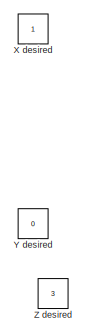
[diagram: root canvas - part 1/2, top left region]
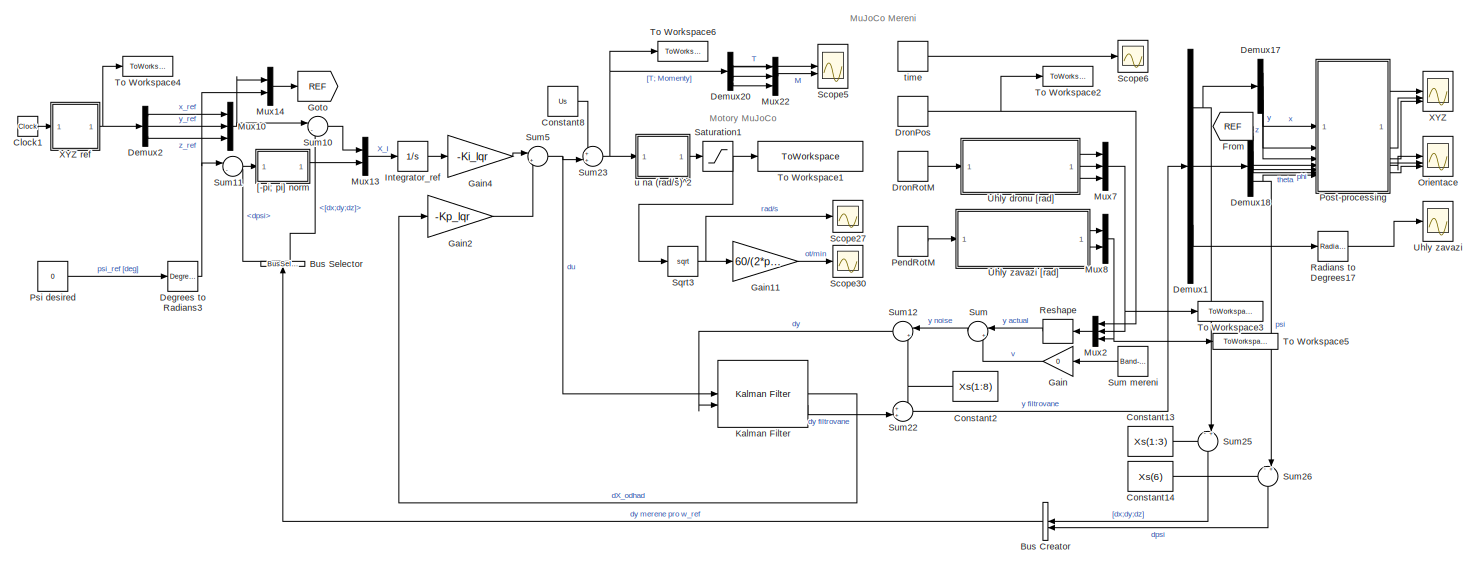
[diagram: root canvas - part 2/2, most of the canvas]
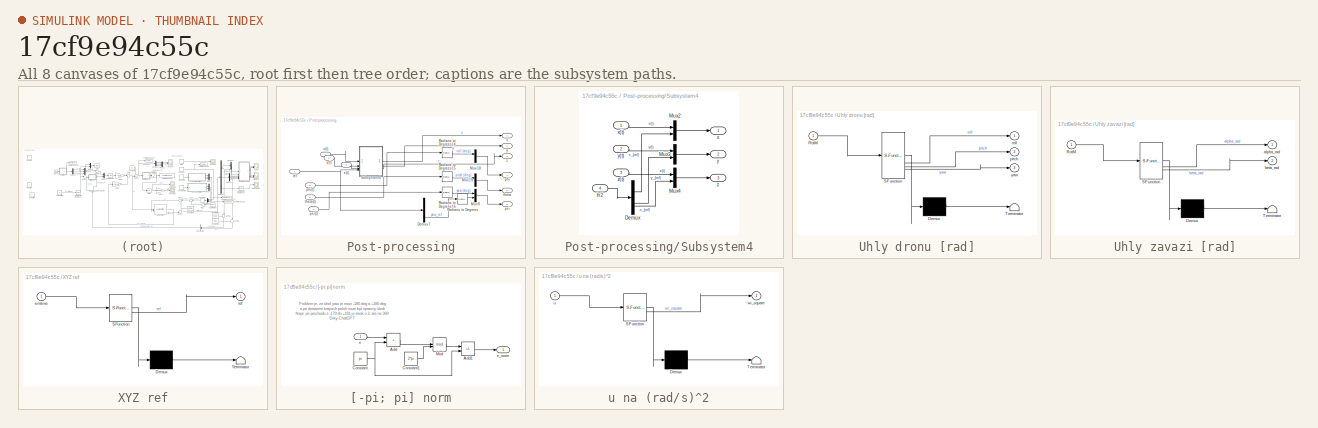
[diagram: thumbnail index - all 8 canvases of the model, root first then tree order]
MODEL slx_17cf9e94c55c
KIND model
CONFIG AbsTol = auto
CONFIG EnableMultiTasking = off
CONFIG FixedStep = 0.005
CONFIG MaxStep = auto
CONFIG MinStep = auto
CONFIG RelTol = 1e-3
CONFIG SampleTimeConstraint = Unconstrained
CONFIG SolverName = ode4
CONFIG StartTime = 0.0
CONFIG StopTime = 1
BLOCK [BusCreator] Bus Creator
  DisplayOption = bar
  InheritFromInputs = on
  Inputs = 2
BLOCK [BusSelector] Bus Selector
  NameLocation = right
  OutputSignals = dpsi,[dx;dy;dz]
BLOCK [Clock] Clock1
BLOCK [Constant] Constant13
  Value = Xs(1:3)
BLOCK [Constant] Constant14
  Value = Xs(6)
BLOCK [Constant] Constant2
  Value = Xs(1:8)
BLOCK [Constant] Constant8
  Value = Us
BLOCK [Reference] Degrees to Radians3  REF=simulink_extras/Transformations/Degrees to
Radians
  SourceBlock = simulink_extras/Transformations/Degrees to\nRadians
  SourceType = DegreesToRadians
BLOCK [Demux] Demux1
  Outputs = 3
BLOCK [Demux] Demux17
  Outputs = 3
BLOCK [Demux] Demux18
  Outputs = 3
BLOCK [Demux] Demux2
  Outputs = 3
BLOCK [Demux] Demux20
BLOCK [MATLABFcn] DronPos
  MATLABFcn = evalin('base', 'DronPos');
  Output1D = off
  OutputDimensions = [3,1]
BLOCK [MATLABFcn] DronRotM
  MATLABFcn = evalin('base', 'DronRotM');
  Output1D = off
  OutputDimensions = [3,3]
BLOCK [From] From
  GotoTag = REF
BLOCK [Gain] Gain
  Gain = 0
BLOCK [Gain] Gain11
  Gain = 60/(2*pi)
BLOCK [Gain] Gain2
  Gain = -Kp_lqr
  Multiplication = Matrix(K*u)
BLOCK [Gain] Gain4
  Gain = -Ki_lqr
  Multiplication = Matrix(K*u)
BLOCK [Goto] Goto
  GotoTag = REF
BLOCK [Integrator] Integrator_ref
  InitialCondition = init_int_dref
BLOCK [Reference] Kalman Filter   REF=ctrlSharedLib/Kalman Filter
  LibrarySourceBlock = cstblocks/State Estimation/Kalman Filter
  SourceBlock = ctrlSharedLib/Kalman Filter
  SourceType = ctrlKalmanFilter
BLOCK [Mux] Mux10
  DisplayOption = bar
  Inputs = 3
BLOCK [Mux] Mux13
  DisplayOption = bar
  Inputs = 2
BLOCK [Mux] Mux14
  DisplayOption = bar
  Inputs = 2
BLOCK [Mux] Mux2
  DisplayOption = bar
  Inputs = 3
BLOCK [Mux] Mux22
  DisplayOption = bar
  Inputs = 3
BLOCK [Mux] Mux7
  DisplayOption = bar
  Inputs = 3
BLOCK [Mux] Mux8
  DisplayOption = bar
  Inputs = 2
BLOCK [Scope] Orientace
  Floating = off
  NumInputPorts = 3
  ScopeSpecificationString = Simulink.scopes.TimeScopeBlockCfg('CurrentConfiguration', extmgr.ConfigurationSet(extmgr.Configuration('Core','General UI',true),extmgr.Configuration('Core','Source UI',true),extmgr.Configuration('Sources','WiredSimulink',true,'DataLoggingVariableName','ScopeData1'),extmgr.Configuration('Visuals','Time Domain',true,'PlotType','Stairs','SerializedDisplays',{struct('MinYLimReal','-9.90988','MaxYLimR...<+3443ch>
BLOCK [MATLABFcn] PendRotM
  MATLABFcn = evalin('base', 'PendRotM');
  Output1D = off
  OutputDimensions = [3,3]
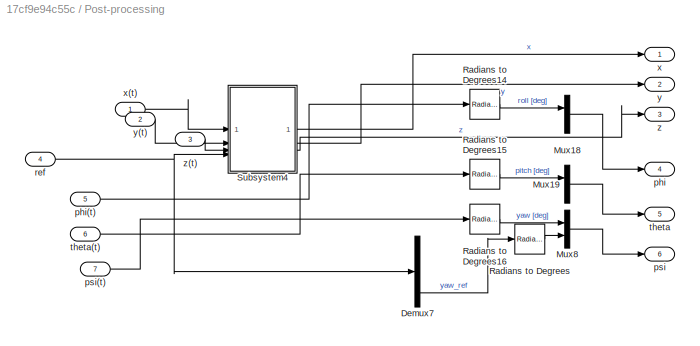
BLOCK [SubSystem] Post-processing
BLOCK [Demux] Post-processing/Demux7
BLOCK [Mux] Post-processing/Mux18
  DisplayOption = bar
  Inputs = 2
BLOCK [Mux] Post-processing/Mux19
  DisplayOption = bar
  Inputs = 2
BLOCK [Mux] Post-processing/Mux8
  DisplayOption = bar
  Inputs = 2
BLOCK [Reference] Post-processing/Radians to Degrees  REF=simulink_extras/Transformations/Radians
to Degrees
  SourceBlock = simulink_extras/Transformations/Radians\nto Degrees
  SourceType = RadiansToDegrees
BLOCK [Reference] Post-processing/Radians to Degrees14  REF=simulink_extras/Transformations/Radians
to Degrees
  SourceBlock = simulink_extras/Transformations/Radians\nto Degrees
  SourceType = RadiansToDegrees
BLOCK [Reference] Post-processing/Radians to Degrees15  REF=simulink_extras/Transformations/Radians
to Degrees
  SourceBlock = simulink_extras/Transformations/Radians\nto Degrees
  SourceType = RadiansToDegrees
BLOCK [Reference] Post-processing/Radians to Degrees16  REF=simulink_extras/Transformations/Radians
to Degrees
  SourceBlock = simulink_extras/Transformations/Radians\nto Degrees
  SourceType = RadiansToDegrees
BLOCK [SubSystem] Post-processing/Subsystem4
BLOCK [Demux] Post-processing/Subsystem4/Demux
BLOCK [Inport] Post-processing/Subsystem4/In2
  Port = 4
BLOCK [Mux] Post-processing/Subsystem4/Mux2
  DisplayOption = bar
  Inputs = 2
BLOCK [Mux] Post-processing/Subsystem4/Mux3
  DisplayOption = bar
  Inputs = 2
BLOCK [Mux] Post-processing/Subsystem4/Mux4
  DisplayOption = bar
  Inputs = 2
BLOCK [Outport] Post-processing/Subsystem4/x
BLOCK [Inport] Post-processing/Subsystem4/x(t)
BLOCK [Outport] Post-processing/Subsystem4/y
  Port = 2
BLOCK [Inport] Post-processing/Subsystem4/y(t)
  Port = 2
BLOCK [Outport] Post-processing/Subsystem4/z
  Port = 3
BLOCK [Inport] Post-processing/Subsystem4/z(t)
  Port = 3
BLOCK [Outport] Post-processing/phi
  Port = 4
BLOCK [Inport] Post-processing/phi(t)
  Port = 5
BLOCK [Outport] Post-processing/psi
  Port = 6
BLOCK [Inport] Post-processing/psi(t)
  Port = 7
BLOCK [Inport] Post-processing/ref
  Port = 4
BLOCK [Outport] Post-processing/theta
  Port = 5
BLOCK [Inport] Post-processing/theta(t)
  Port = 6
BLOCK [Outport] Post-processing/x
BLOCK [Inport] Post-processing/x(t)
BLOCK [Outport] Post-processing/y
  Port = 2
BLOCK [Inport] Post-processing/y(t)
  Port = 2
BLOCK [Outport] Post-processing/z
  Port = 3
BLOCK [Inport] Post-processing/z(t)
  Port = 3
BLOCK [Constant] Psi desired
  Value = 0
BLOCK [Reference] Radians to Degrees17  REF=simulink_extras/Transformations/Radians
to Degrees
  SourceBlock = simulink_extras/Transformations/Radians\nto Degrees
  SourceType = RadiansToDegrees
BLOCK [Reshape] Reshape
  OutputDimensionality = Customize
  OutputDimensions = [8,1]
BLOCK [Saturate] Saturation1
  LowerLimit = 0
  UpperLimit = 1976^2
BLOCK [Scope] Scope27
  Floating = off
  NumInputPorts = 1
  ScopeSpecificationString = Simulink.scopes.TimeScopeBlockCfg('CurrentConfiguration', extmgr.ConfigurationSet(extmgr.Configuration('Core','General UI',true),extmgr.Configuration('Core','Source UI',true),extmgr.Configuration('Sources','WiredSimulink',true,'DataLoggingVariableName','ScopeData3'),extmgr.Configuration('Visuals','Time Domain',true,'SerializedDisplays',{struct('MinYLimReal','598.75272','MaxYLimReal','1185.0066','Y...<+1572ch>
BLOCK [Scope] Scope30
  Commented = on
  Floating = off
  NumInputPorts = 1
  ScopeSpecificationString = Simulink.scopes.TimeScopeBlockCfg('CurrentConfiguration', extmgr.ConfigurationSet(extmgr.Configuration('Core','General UI',true),extmgr.Configuration('Core','Source UI',true),extmgr.Configuration('Sources','WiredSimulink',true,'DataLoggingVariableName','ScopeData4'),extmgr.Configuration('Visuals','Time Domain',true,'SerializedDisplays',{struct('MinYLimReal','7939.33189','MaxYLimReal','9984.01729',...<+1584ch>
BLOCK [Scope] Scope5
  Floating = off
  NumInputPorts = 2
  ScopeSpecificationString = Simulink.scopes.TimeScopeBlockCfg('CurrentConfiguration', extmgr.ConfigurationSet(extmgr.Configuration('Core','General UI',true),extmgr.Configuration('Core','Source UI',true),extmgr.Configuration('Sources','WiredSimulink',true,'DataLoggingVariableName','ScopeData5'),extmgr.Configuration('Visuals','Time Domain',true,'SerializedDisplays',{struct('MinYLimReal','12.1908','MaxYLimReal','51.07923','YLab...<+2265ch>
BLOCK [Scope] Scope6
  Floating = off
  NumInputPorts = 1
  ScopeSpecificationString = Simulink.scopes.TimeScopeBlockCfg('CurrentConfiguration', extmgr.ConfigurationSet(extmgr.Configuration('Core','General UI',true),extmgr.Configuration('Core','Source UI',true),extmgr.Configuration('Sources','WiredSimulink',true,'DataLoggingVariableName','ScopeData6'),extmgr.Configuration('Visuals','Time Domain',true,'SerializedDisplays',{struct('MinYLimReal','-0.8','MaxYLimReal','7.2','YLabelReal',...<+1501ch>
BLOCK [Sqrt] Sqrt3
BLOCK [Sum] Sum
  Inputs = |++
BLOCK [Reference] Sum mereni  REF=simulink/Sources/Band-Limited
White Noise
  SourceBlock = simulink/Sources/Band-Limited\nWhite Noise
  SourceType = Band-Limited White Noise.
BLOCK [Sum] Sum10
  Inputs = |-+
BLOCK [Sum] Sum11
  Inputs = |-+
BLOCK [Sum] Sum12
  Inputs = |+-
BLOCK [Sum] Sum22
  Inputs = ++|
BLOCK [Sum] Sum23
  Inputs = ++|
BLOCK [Sum] Sum25
  Inputs = -+|
  NameLocation = left
BLOCK [Sum] Sum26
  Inputs = -+|
  NameLocation = left
BLOCK [Sum] Sum5
  Inputs = |++
BLOCK [ToWorkspace] To Workspace1
  FixptAsFi = on
  MaxDataPoints = inf
  SampleTime = -1
  VariableName = Rotor_AngVel_square
BLOCK [ToWorkspace] To Workspace2
  FixptAsFi = on
  MaxDataPoints = inf
  SampleTime = -1
  SaveFormat = Timeseries
  VariableName = dron_pos
BLOCK [ToWorkspace] To Workspace3
  FixptAsFi = on
  MaxDataPoints = inf
  SampleTime = -1
  SaveFormat = Timeseries
  VariableName = dron_angles
BLOCK [ToWorkspace] To Workspace4
  FixptAsFi = on
  MaxDataPoints = inf
  SampleTime = -1
  SaveFormat = Timeseries
  VariableName = ref
BLOCK [ToWorkspace] To Workspace5
  FixptAsFi = on
  MaxDataPoints = inf
  SampleTime = -1
  SaveFormat = Timeseries
  VariableName = pend_angles
BLOCK [ToWorkspace] To Workspace6
  FixptAsFi = on
  MaxDataPoints = inf
  SampleTime = -1
  SaveFormat = Timeseries
  VariableName = sily
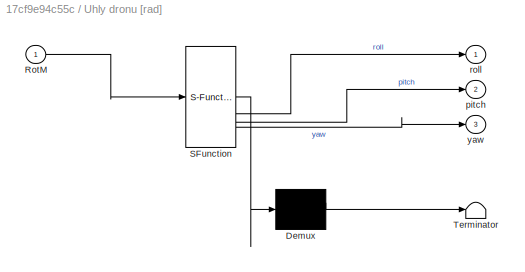
BLOCK [SubSystem] Uhly dronu [rad]
  ErrorFcn = Stateflow.Translate.translate
  PermitHierarchicalResolution = ExplicitOnly
  SFBlockType = MATLAB Function
  TreatAsAtomicUnit = on
BLOCK [Demux] Uhly dronu [rad]/ Demux 
  Outputs = 1
BLOCK [S-Function] Uhly dronu [rad]/ SFunction 
  EnableBusSupport = on
  FunctionName = sf_sfun
  PortCounts = [1 4]
  SFcnIsStateOwnerBlock = off
  SFunctionDeploymentMode = off
  Tag = Stateflow S-Function 7
BLOCK [Terminator] Uhly dronu [rad]/ Terminator 
BLOCK [Inport] Uhly dronu [rad]/RotM
BLOCK [Outport] Uhly dronu [rad]/pitch
  Port = 2
BLOCK [Outport] Uhly dronu [rad]/roll
BLOCK [Outport] Uhly dronu [rad]/yaw
  Port = 3
BLOCK [Scope] Uhly zavazi
  Floating = off
  NumInputPorts = 1
  ScopeSpecificationString = Simulink.scopes.TimeScopeBlockCfg('CurrentConfiguration', extmgr.ConfigurationSet(extmgr.Configuration('Core','General UI',true),extmgr.Configuration('Core','Source UI',true),extmgr.Configuration('Sources','WiredSimulink',true,'DataLoggingVariableName','ScopeData9'),extmgr.Configuration('Visuals','Time Domain',true,'PlotType','Stairs','SerializedDisplays',{struct('MinYLimReal','-20.60194','MaxYLim...<+1796ch>
BLOCK [SubSystem] Uhly zavazi [rad]
  ErrorFcn = Stateflow.Translate.translate
  PermitHierarchicalResolution = ExplicitOnly
  SFBlockType = MATLAB Function
  TreatAsAtomicUnit = on
BLOCK [Demux] Uhly zavazi [rad]/ Demux 
  Outputs = 1
BLOCK [S-Function] Uhly zavazi [rad]/ SFunction 
  EnableBusSupport = on
  FunctionName = sf_sfun
  PortCounts = [1 3]
  SFcnIsStateOwnerBlock = off
  SFunctionDeploymentMode = off
  Tag = Stateflow S-Function 9
BLOCK [Terminator] Uhly zavazi [rad]/ Terminator 
BLOCK [Inport] Uhly zavazi [rad]/RotM
BLOCK [Outport] Uhly zavazi [rad]/alpha_rad
BLOCK [Outport] Uhly zavazi [rad]/beta_rad
  Port = 2
BLOCK [Constant] X desired
BLOCK [Scope] XYZ
  Floating = off
  NumInputPorts = 3
  ScopeSpecificationString = Simulink.scopes.TimeScopeBlockCfg('CurrentConfiguration', extmgr.ConfigurationSet(extmgr.Configuration('Core','General UI',true,'FigureColor',[0 0 0]),extmgr.Configuration('Core','Source UI',true),extmgr.Configuration('Sources','WiredSimulink',true,'DataLoggingVariableName','ScopeData10'),extmgr.Configuration('Visuals','Time Domain',true,'PlotType','Stairs','SerializedDisplays',{struct('MinYLimRea...<+3729ch>
BLOCK [SubSystem] XYZ ref
  ErrorFcn = Stateflow.Translate.translate
  PermitHierarchicalResolution = ExplicitOnly
  SFBlockType = MATLAB Function
  TreatAsAtomicUnit = on
BLOCK [Demux] XYZ ref/ Demux 
  Outputs = 1
BLOCK [S-Function] XYZ ref/ SFunction 
  EnableBusSupport = on
  FunctionName = sf_sfun
  PortCounts = [1 2]
  SFcnIsStateOwnerBlock = off
  SFunctionDeploymentMode = off
  Tag = Stateflow S-Function 5
BLOCK [Terminator] XYZ ref/ Terminator 
BLOCK [Outport] XYZ ref/ref
BLOCK [Inport] XYZ ref/simtime
BLOCK [Constant] Y desired
  Value = 0
BLOCK [Constant] Z desired
  Value = 3
BLOCK [SubSystem] [-pi; pi] norm
BLOCK [Sum] [-pi; pi] norm/Add
  IconShape = rectangular
BLOCK [Sum] [-pi; pi] norm/Add1
  IconShape = rectangular
  Inputs = +-
BLOCK [Constant] [-pi; pi] norm/Constant
  Value = pi
BLOCK [Constant] [-pi; pi] norm/Constant1
  Value = 2*pi
BLOCK [Math] [-pi; pi] norm/Mod
  Operator = mod
BLOCK [Inport] [-pi; pi] norm/e
BLOCK [Outport] [-pi; pi] norm/e_norm
BLOCK [MATLABFcn] time
  MATLABFcn = evalin('base', 'time');
  Output1D = off
BLOCK [SubSystem] u na (rad//s)^2
  ErrorFcn = Stateflow.Translate.translate
  PermitHierarchicalResolution = ExplicitOnly
  SFBlockType = MATLAB Function
  TreatAsAtomicUnit = on
BLOCK [Demux] u na (rad//s)^2/ Demux 
  Outputs = 1
BLOCK [S-Function] u na (rad//s)^2/ SFunction 
  EnableBusSupport = on
  FunctionName = sf_sfun
  Parameters = b_moment,k_thrust,l
  PortCounts = [1 2]
  SFcnIsStateOwnerBlock = off
  SFunctionDeploymentMode = off
  Tag = Stateflow S-Function 13
BLOCK [Terminator] u na (rad//s)^2/ Terminator 
BLOCK [Inport] u na (rad//s)^2/u
BLOCK [Outport] u na (rad//s)^2/wi_square
ANNOTATION (root): Motory MuJoCo
ANNOTATION (root): MuJoCo Mereni
ANNOTATION [-pi; pi] norm: Problem je, ze uhel yaw je mezi -180 deg a +180 deg a pri dosazeni krajnich poloh musi byt spravny skok Napr. pri prechodu z -179 do +181 je skok o 2, ale ne 360 Diky ChatGPT
LINE Bus Creator:1 -> Bus Selector:1
LINE Bus Selector:1 -> Sum11:2
LINE Bus Selector:2 -> Sum10:2
LINE Clock1:1 -> XYZ ref:1
LINE Constant13:1 -> Sum25:1
LINE Constant14:1 -> Sum26:1
NET Constant2:1 -> Sum12:2, Sum22:1
LINE Constant8:1 -> Sum23:1
NET Degrees to Radians3:1 -> Mux14:2, Sum11:1
LINE Demux17:1 -> Post-processing:1
LINE Demux17:2 -> Post-processing:2
LINE Demux17:3 -> Post-processing:3
LINE Demux18:1 -> Post-processing:5
LINE Demux18:2 -> Post-processing:6
NET Demux18:3 -> Post-processing:7, Sum26:2
NET Demux1:1 -> Demux17:1, Sum25:2
LINE Demux1:2 -> Demux18:1
LINE Demux1:3 -> Radians to Degrees17:1
LINE Demux20:1 -> Scope5:1
LINE Demux20:2 -> Mux22:1
LINE Demux20:3 -> Mux22:2
LINE Demux20:4 -> Mux22:3
LINE Demux2:1 -> Mux10:1
LINE Demux2:2 -> Mux10:2
LINE Demux2:3 -> Mux10:3
NET DronPos:1 -> Mux2:1, To Workspace2:1
LINE DronRotM:1 -> Uhly dronu [rad]:1
LINE From:1 -> Post-processing:4
LINE Gain11:1 -> Scope30:1
LINE Gain2:1 -> Sum5:2
LINE Gain4:1 -> Sum5:1
LINE Gain:1 -> Sum:2
LINE Integrator_ref:1 -> Gain4:1
LINE Kalman Filter :1 -> Gain2:1
LINE Kalman Filter :2 -> Sum22:2
NET Mux10:1 -> Mux14:1, Sum10:1
LINE Mux13:1 -> Integrator_ref:1
LINE Mux14:1 -> Goto:1
LINE Mux22:1 -> Scope5:2
LINE Mux2:1 -> Reshape:1
NET Mux7:1 -> Mux2:2, To Workspace3:1
NET Mux8:1 -> Mux2:3, To Workspace5:1
LINE PendRotM:1 -> Uhly zavazi [rad]:1
LINE Post-processing/Demux7:4 -> Post-processing/Radians to Degrees:1
LINE Post-processing/Mux18:1 -> Post-processing/phi:1
LINE Post-processing/Mux19:1 -> Post-processing/theta:1
LINE Post-processing/Mux8:1 -> Post-processing/psi:1
LINE Post-processing/Radians to Degrees14:1 -> Post-processing/Mux18:1
LINE Post-processing/Radians to Degrees15:1 -> Post-processing/Mux19:1
LINE Post-processing/Radians to Degrees16:1 -> Post-processing/Mux8:1
LINE Post-processing/Radians to Degrees:1 -> Post-processing/Mux8:2
LINE Post-processing/Subsystem4/Demux:1 -> Post-processing/Subsystem4/Mux2:2
LINE Post-processing/Subsystem4/Demux:2 -> Post-processing/Subsystem4/Mux3:2
LINE Post-processing/Subsystem4/Demux:3 -> Post-processing/Subsystem4/Mux4:2
LINE Post-processing/Subsystem4/In2:1 -> Post-processing/Subsystem4/Demux:1
LINE Post-processing/Subsystem4/Mux2:1 -> Post-processing/Subsystem4/x:1
LINE Post-processing/Subsystem4/Mux3:1 -> Post-processing/Subsystem4/y:1
LINE Post-processing/Subsystem4/Mux4:1 -> Post-processing/Subsystem4/z:1
LINE Post-processing/Subsystem4/x(t):1 -> Post-processing/Subsystem4/Mux2:1
LINE Post-processing/Subsystem4/y(t):1 -> Post-processing/Subsystem4/Mux3:1
LINE Post-processing/Subsystem4/z(t):1 -> Post-processing/Subsystem4/Mux4:1
LINE Post-processing/Subsystem4:1 -> Post-processing/x:1
LINE Post-processing/Subsystem4:2 -> Post-processing/y:1
LINE Post-processing/Subsystem4:3 -> Post-processing/z:1
LINE Post-processing/phi(t):1 -> Post-processing/Radians to Degrees14:1
LINE Post-processing/psi(t):1 -> Post-processing/Radians to Degrees16:1
NET Post-processing/ref:1 -> Post-processing/Demux7:1, Post-processing/Subsystem4:4
LINE Post-processing/theta(t):1 -> Post-processing/Radians to Degrees15:1
LINE Post-processing/x(t):1 -> Post-processing/Subsystem4:1
LINE Post-processing/y(t):1 -> Post-processing/Subsystem4:2
LINE Post-processing/z(t):1 -> Post-processing/Subsystem4:3
LINE Post-processing:1 -> XYZ:1
LINE Post-processing:2 -> XYZ:2
LINE Post-processing:3 -> XYZ:3
LINE Post-processing:4 -> Orientace:1
LINE Post-processing:5 -> Orientace:2
LINE Post-processing:6 -> Orientace:3
LINE Psi desired:1 -> Degrees to Radians3:1
LINE Radians to Degrees17:1 -> Uhly zavazi:1
LINE Reshape:1 -> Sum:1
NET Saturation1:1 -> Sqrt3:1, To Workspace1:1
NET Sqrt3:1 -> Gain11:1, Scope27:1
LINE Sum mereni:1 -> Gain:1
LINE Sum10:1 -> Mux13:1
LINE Sum11:1 -> [-pi; pi] norm:1
LINE Sum12:1 -> Kalman Filter :2
LINE Sum22:1 -> Demux1:1
NET Sum23:1 -> Demux20:1, To Workspace6:1, u na (rad//s)^2:1
LINE Sum25:1 -> Bus Creator:1
LINE Sum26:1 -> Bus Creator:2
NET Sum5:1 -> Kalman Filter :1, Sum23:2
LINE Sum:1 -> Sum12:1
LINE Uhly dronu [rad]:1 -> Mux7:1
LINE Uhly dronu [rad]:2 -> Mux7:2
LINE Uhly dronu [rad]:3 -> Mux7:3
LINE Uhly zavazi [rad]:1 -> Mux8:1
LINE Uhly zavazi [rad]:2 -> Mux8:2
NET XYZ ref:1 -> Demux2:1, To Workspace4:1
LINE [-pi; pi] norm/Add1:1 -> [-pi; pi] norm/e_norm:1
LINE [-pi; pi] norm/Add:1 -> [-pi; pi] norm/Mod:1
LINE [-pi; pi] norm/Constant1:1 -> [-pi; pi] norm/Mod:2
NET [-pi; pi] norm/Constant:1 -> [-pi; pi] norm/Add1:2, [-pi; pi] norm/Add:2
LINE [-pi; pi] norm/Mod:1 -> [-pi; pi] norm/Add1:1
LINE [-pi; pi] norm/e:1 -> [-pi; pi] norm/Add:1
LINE [-pi; pi] norm:1 -> Mux13:2
LINE time:1 -> Scope6:1
LINE u na (rad//s)^2:1 -> Saturation1:1
note: NET lines group one-source signal fan-out (src -> all destinations, sorted); 1:1 wires keep LINE
CHART XYZ ref states=1 transitions=1
  STATE_LABEL 'eML_blk_kernel()'
  STATE_LABEL 'SCRIPT:\nfunction ref = fcn(simtime)\n% pouze poloha, yaw_ref=0\nif simtime < 1\n    ref = [0;0;2];\nelseif simtime < 6\n    ref = [3;3;2];\nelseif simtime < 10\n    ref = [3;3;6];\nelseif simtime < 15\n    ref = [3;0;6];\nelseif simtime < 22\n    ref = [3;-3;8];\nelseif simtime < 30\n    ref = [-3;0;6];\nelseif simtime < 35\n    ref = [-3;3;6];\nelseif simtime < 38\n    ref = [-3;3;3];\nelseif simtime < 40\n    ref ...<+127ch>'
CHART Uhly dronu [rad] states=1 transitions=1
  STATE_LABEL 'eML_blk_kernel()'
  STATE_LABEL "SCRIPT:\nfunction [roll, pitch, yaw] = quad_attitude(RotM)\n% matice rotace koptery z Python, vuci svetu!!!\n% rotm2eul prevadi na Eulerove uhly\nradians = rotm2eul(RotM, 'ZYX'); % pouzivam poradi ZYX\n\n% roll = kolem x, pitch = kolem y, yaw = kolem z\nyaw = radians(1);\npitch = radians(2);\nroll = radians(3);\nend\n"
CHART Uhly zavazi [rad] states=1 transitions=1
  STATE_LABEL 'eML_blk_kernel()'
  STATE_LABEL 'SCRIPT:\nfunction [alpha_rad, beta_rad] = pend_orient(RotM)\n% Расчет углов альфа и бета маятника\n\n% Вектор маятника\nrope_vector = RotM * [0; 0; -1];\n\n% Расчет угла альфа\nrope_vector_xz = rope_vector([1, 3]); % Компоненты x и z\nz_axis = [0; -1];\ncos_alpha = dot(rope_vector_xz, z_axis) / (norm(rope_vector_xz) * norm(z_axis));\ncos_alpha = max(-1, min(1, cos_alpha)); % Ограничиваем в диапазоне [-1, 1]\n...<+530ch>'
CHART u na (rad//s)^2 states=1 transitions=1
  STATE_LABEL 'eML_blk_kernel()'
  STATE_LABEL 'SCRIPT:\nfunction wi_square = fcn(u, b_moment, k_thrust, l)\n\nT = u(1);\nTau_phi = u(2);\nTau_theta = u(3);\nTau_psi = u(4);\n\nw1 = ( (Tau_phi*b_moment - Tau_theta*b_moment + l*T*b_moment + l*Tau_psi*k_thrust)/(4*l*b_moment*k_thrust));\nw2 = ( (-Tau_theta*b_moment - Tau_phi*b_moment + l*T*b_moment - l*Tau_psi*k_thrust)/(4*l*b_moment*k_thrust));\nw3 = ( (Tau_theta*b_moment - Tau_phi*b_moment + l*T*b_moment...<+189ch>'
CHART  states=0 transitions=0
CHART  states=0 transitions=0
CHART  states=0 transitions=0
CHART  states=0 transitions=0
